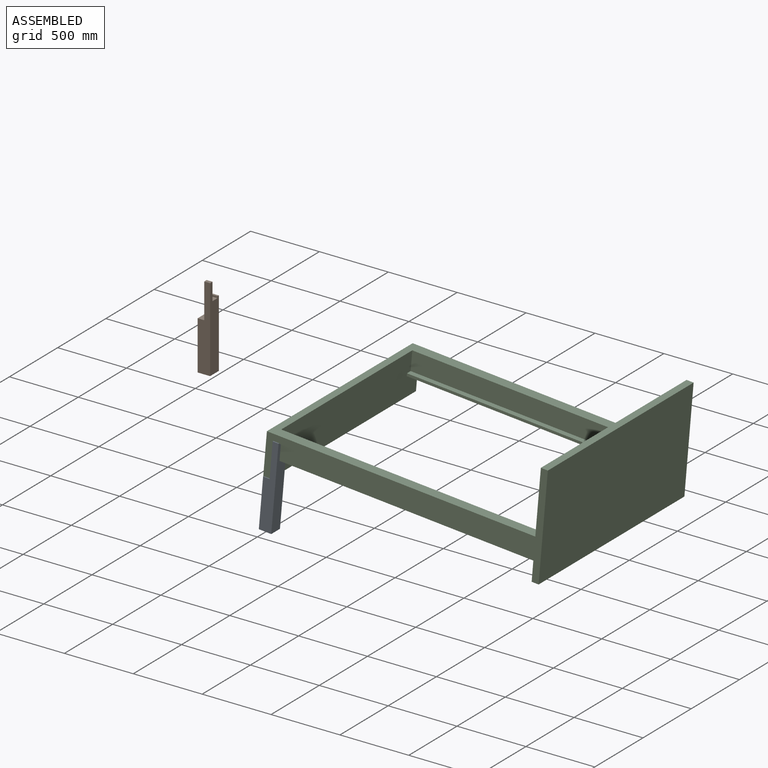
[diagram: assembled view]
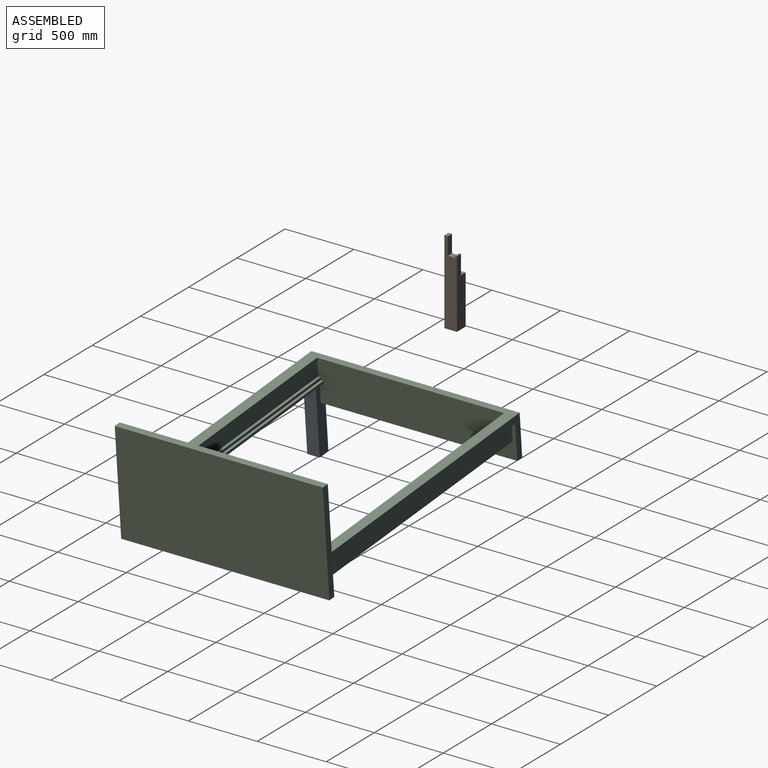
[diagram: assembled view, second angle]
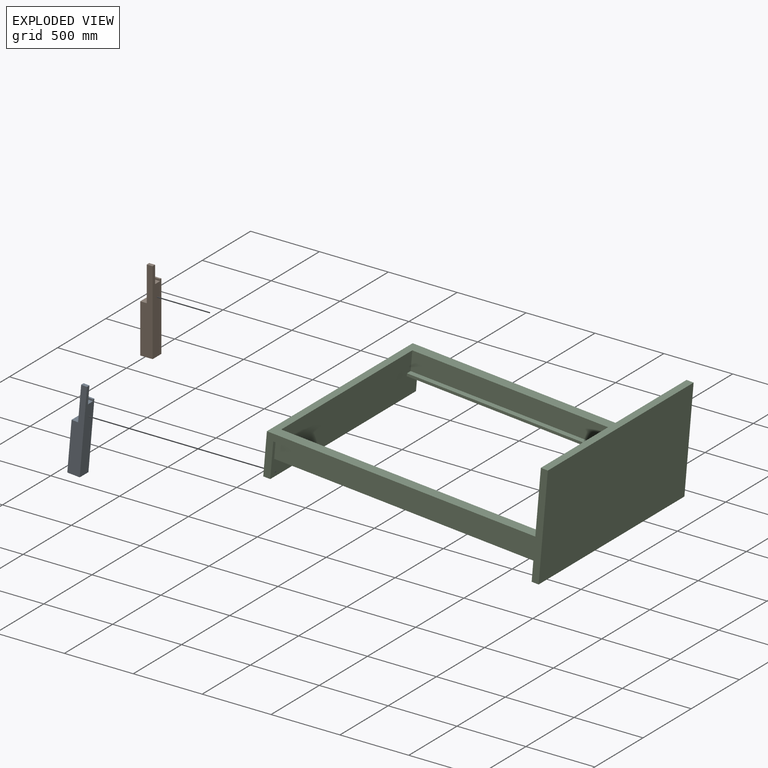
[diagram: exploded view]
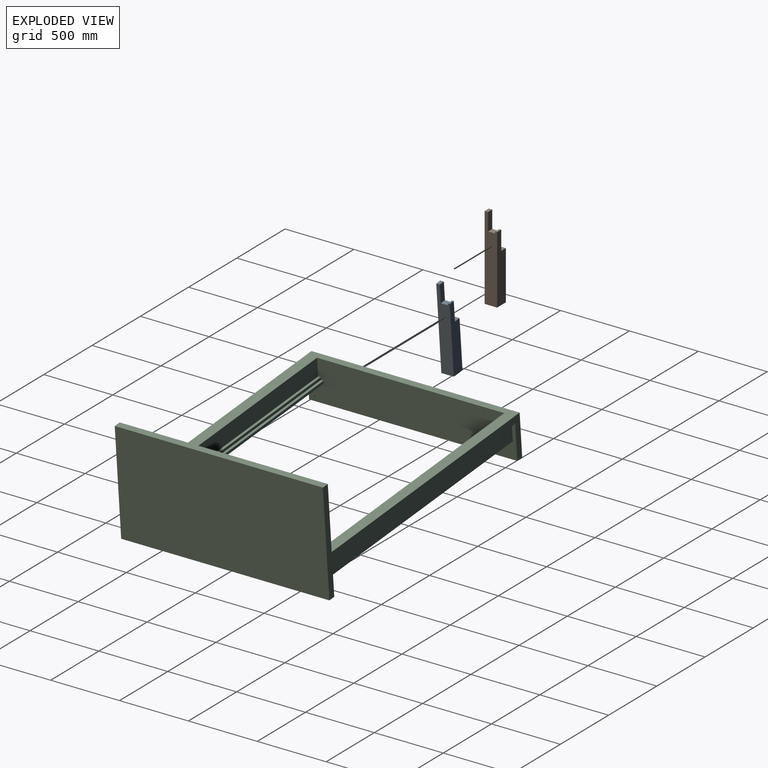
[diagram: exploded view, second angle]
ASSEMBLY  parts=3 mates=5
PART A: 12 faces, bbox 90.4x90.4x609.6 mm
  f0: plane 609.6x90.42mm, normal (1,0,0), area 47045.1mm2, adj f2,f3,f4,f6,f8,f9,f10,f11
  f1: plane 254x90.42mm, normal (-1,0,0), area 14890.3mm2, adj f2,f3,f4,f7,f8,f9,f10,f11
  f2: plane 42.86x25.4mm, normal (0,0,1), area 1088.6mm2, adj f0,f1,f3,f8
  f3: plane 609.6x90.42mm, normal (0,-1,0), area 43040.9mm2, adj f0,f1,f2,f5,f6,f7
  f4: plane 495.3x90.42mm, normal (0,1,0), area 38142.1mm2, adj f0,f1,f5,f6,f7,f11
  f5: plane 355.6x90.42mm, normal (-1,0,0), area 32154.8mm2, adj f3,f4,f6,f7
  f6: plane 90.42x90.42mm, normal (0,0,-1), area 8176.5mm2, adj f0,f3,f4,f5
  f7: plane 90.42x47.57mm, normal (0,0,1), area 4301mm2, adj f1,f3,f4,f5
  f8: plane 127x42.86mm, normal (0,1,0), area 5443.1mm2, adj f0,f1,f2,f9
  f9: plane 50.8x42.86mm, normal (0,0,1), area 2177.2mm2, adj f0,f1,f8,f10
  f10: plane 42.86x12.7mm, normal (0,-1,0), area 544.3mm2, adj f0,f1,f9,f11
  f11: plane 42.86x14.22mm, normal (0,0,1), area 609.6mm2, adj f0,f1,f4,f10
PART B: same geometry as A
PART C: 28 faces, bbox 2006.6x1511.3x768.4 mm
  f0: plane 1905x19.05mm, normal (0,-1,0), area 36290.3mm2, adj f1,f4,f14,f26
  f1: plane 1511.3x304.8mm, normal (1,0,0), area 438184.6mm2, adj f0,f2,f3,f4,f5,f6,f7,f11
  f2: plane 1905x19.05mm, normal (0,0,1), area 36290.3mm2, adj f1,f3,f14,f24
  f3: plane 1905x127mm, normal (0,1,0), area 241935mm2, adj f1,f2,f5,f14
  f4: plane 1905x50.8mm, normal (0,0,-1), area 96774mm2, adj f0,f1,f14,f18
  f5: plane 1955.8x1511.3mm, normal (0,0,1), area 367096mm2, adj f1,f3,f7,f9,f13,f14,f20
  f6: plane 1905x50.8mm, normal (0,0,-1), area 96774mm2, adj f1,f14,f16,f19
  f7: plane 2006.6x768.35mm, normal (0,1,0), area 151290mm2, adj f1,f5,f8,f9,f10,f11,f12,f14
  f8: plane 1511.3x50.8mm, normal (0,0,1), area 76774mm2, adj f7,f12,f13,f14
  f9: plane 1511.3x304.8mm, normal (-1,0,0), area 460644.2mm2, adj f5,f7,f11,f13
  f10: plane 1511.3x50.8mm, normal (0,0,-1), area 76774mm2, adj f7,f12,f13,f14
  f11: plane 1511.3x50.8mm, normal (0,0,-1), area 76774mm2, adj f1,f7,f9,f13
  f12: plane 1511.3x768.35mm, normal (1,0,0), area 1161207.4mm2, adj f7,f8,f10,f13
  f13: plane 2006.6x768.35mm, normal (0,-1,0), area 151290mm2, adj f1,f5,f8,f9,f10,f11,f12,f14
  f14: plane 1511.3x768.35mm, normal (-1,0,0), area 1138747.7mm2, adj f0,f2,f3,f4,f5,f6,f7,f8
  f15: plane 1905x25.4mm, normal (0,0,-1), area 48387mm2, adj f1,f13,f14,f16
  f16: plane 1905x127mm, normal (0,-1,0), area 241935mm2, adj f1,f6,f14,f15
  f17: plane 1905x25.4mm, normal (0,0,-1), area 48387mm2, adj f1,f7,f14,f18
  f18: plane 1905x127mm, normal (0,1,0), area 241935mm2, adj f1,f4,f14,f17
  f19: plane 1905x12.7mm, normal (0,1,0), area 24193.5mm2, adj f1,f6,f14,f21
  f20: plane 1905x139.7mm, normal (0,-1,0), area 266128.5mm2, adj f1,f5,f14,f25
  f21: plane 1905x38.1mm, normal (0,0,-1), area 72580.5mm2, adj f1,f14,f19,f22
  f22: plane 1905x19.05mm, normal (0,1,0), area 36290.3mm2, adj f1,f14,f21,f23
  f23: plane 1905x19.05mm, normal (0,0,1), area 36290.3mm2, adj f1,f14,f22,f24
  f24: plane 1905x19.05mm, normal (0,1,0), area 36290.2mm2, adj f1,f2,f14,f23
  f25: plane 1905x38.1mm, normal (0,0,1), area 72580.5mm2, adj f1,f14,f20,f27
  f26: plane 1905x38.1mm, normal (0,0,-1), area 72580.5mm2, adj f0,f1,f14,f27
  f27: plane 1905x19.05mm, normal (0,-1,0), area 36290.2mm2, adj f1,f14,f25,f26
PLACE A rot(axis=(0,1,0),5deg) t=(-890.97,-1511.3,-834.4)mm
PLACE B t=(-1656.49,-1051.66,-178.67)mm
PLACE C rot(axis=(0,1,0),5deg) t=(104.71,5.59,120.35)mm
MATE parallel A.f9 <-> C.f6  axis (0.09,0,1) through (-870.26,-1460.5,-351.76)mm
MATE parallel A.f7 <-> C.f11  axis (0.09,0,1) through (-926.37,-1466.09,-474.34)mm
MATE parallel A.f1 <-> C.f1  axis (-1,0,0.09) through (-894.67,-1472.67,-384.9)mm
MATE parallel A.f8 <-> C.f16  axis (0,1,0) through (-864.72,-1485.9,-288.51)mm
MATE parallel A.f7 <-> C.f11  axis (0.09,0,1) through (-926.37,-1466.09,-474.34)mm
